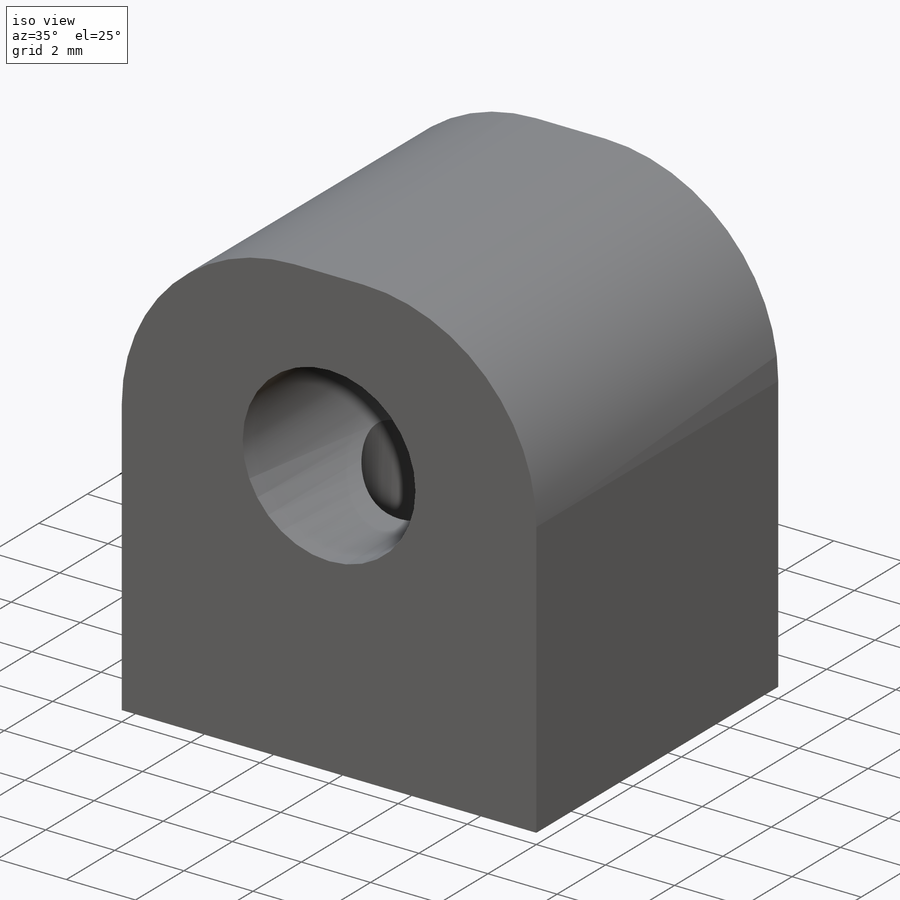
[diagram: iso view]
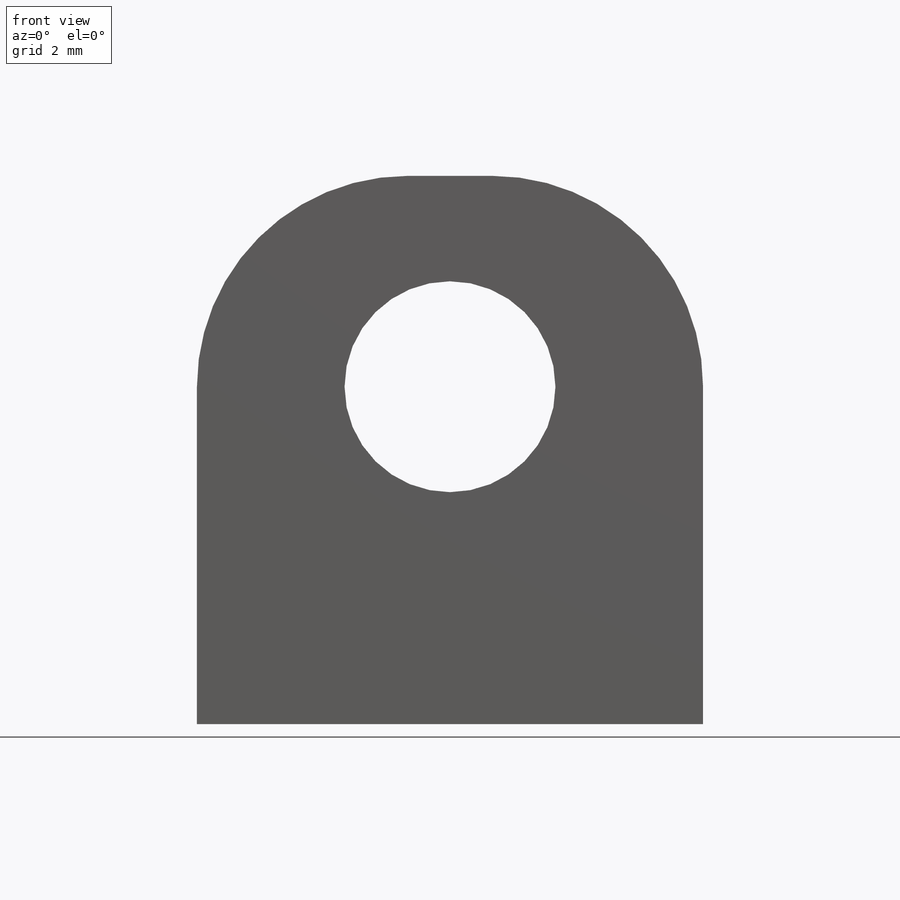
[diagram: front view]
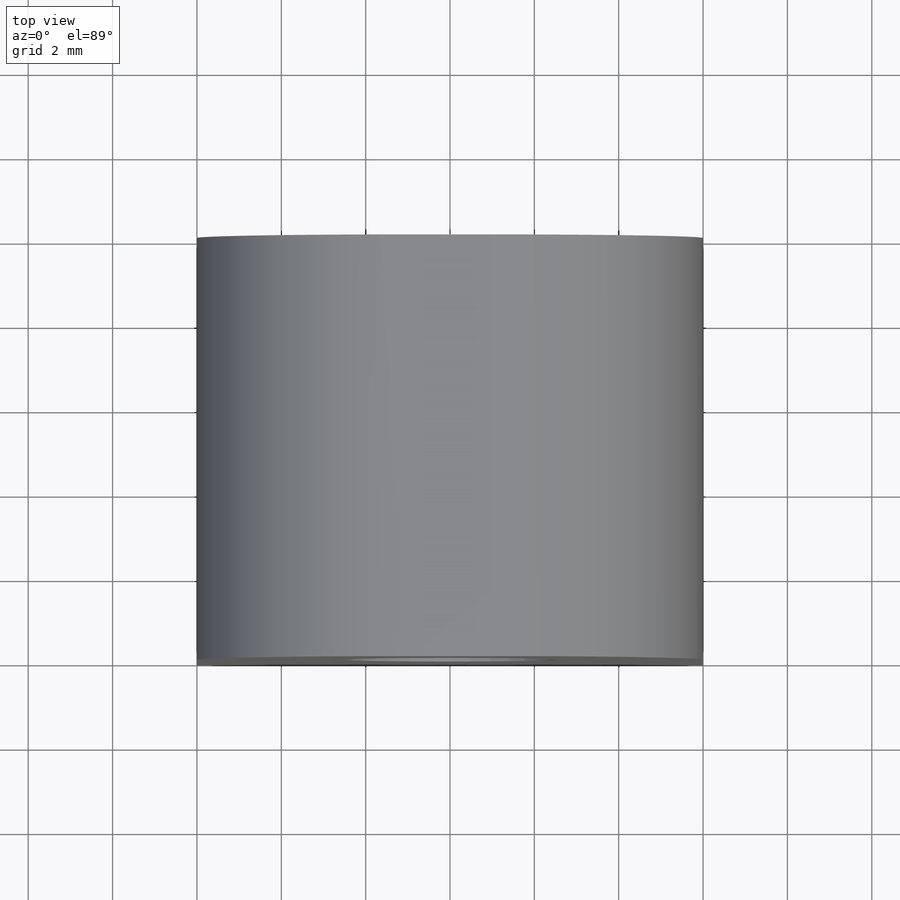
[diagram: top view]
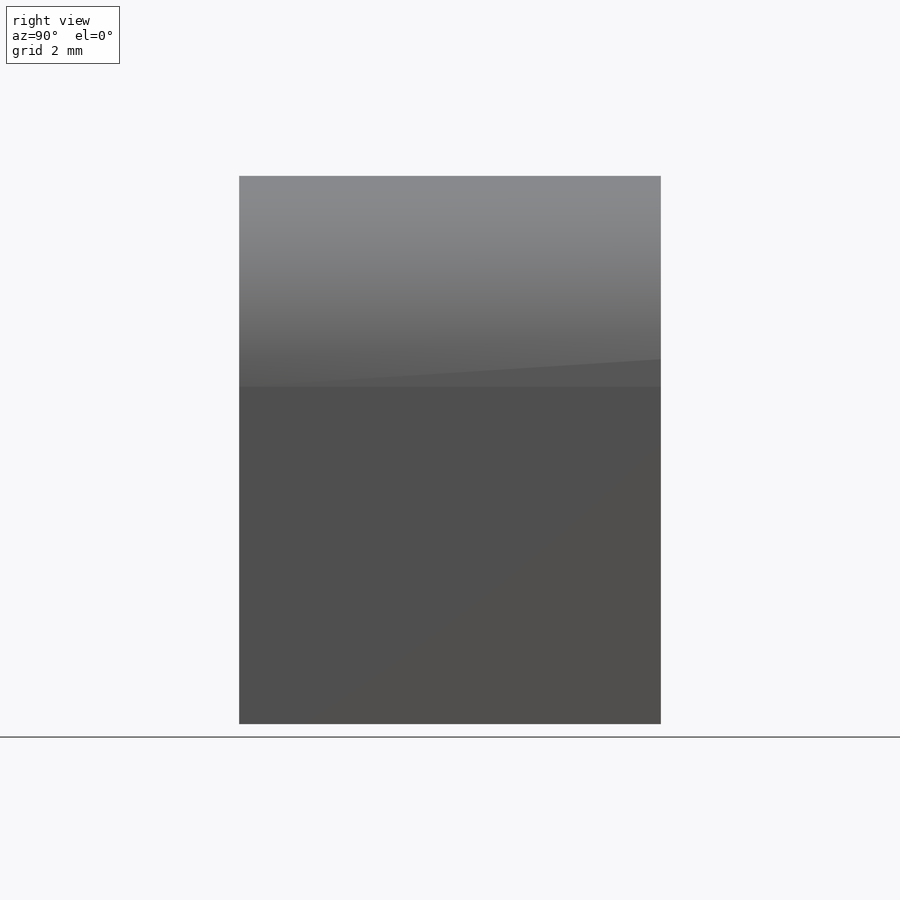
[diagram: right view]
SOLIDWORKS PART (.sldprt)
format: sldprt  version: not decoded by parser v0  size: 185,856 bytes
history: native  units: mm
features: plane x5, sketch x4, material x1, extrude x1, cut_revolve x1, hole x1, fillet x1 (+9 scaffold rows collapsed)
feature tree (23):
  scaffold x9  (default folders/planes/origin — collapsed)
  material  "Matériau <non spécifié>"
  plane  "Plan de face"
  plane  "Plan de dessus"
  plane  "Plan de droite"
  plane  "Plan1"
  sketch  "Esquisse1"
  extrude  "Boss.-Extru.1"  Depth=10mm
  sketch  "Esquisse3"  dims[D1=2.5mm]
  cut_revolve  "Enlèvement de matière-Révolution1"  Angle=360deg
  plane  "Plan2"
  hole  "Diamètre du perçage Ø5.6 (5.6)1"  Diameter=4.2mm Depth=8mm
  sketch  "Esquisse5"
  sketch  "Esquisse4"  dims[hole-wizard template sketch: 59 standard entries collapsed; hole parameters kept: c18.Diamètre du perçage jusqu'au prochain=4.2mm c18.Profondeur du perçage jusqu'au prochain=8.0mm]
  fillet  "Congé1"  Radius=5mm
decode coverage: 6 of 8 modeling features carry decoded parameters
note: ~ marks probable driven/reference dimensions
note: suppression state not decoded; provenance and decode notes live in map.json
